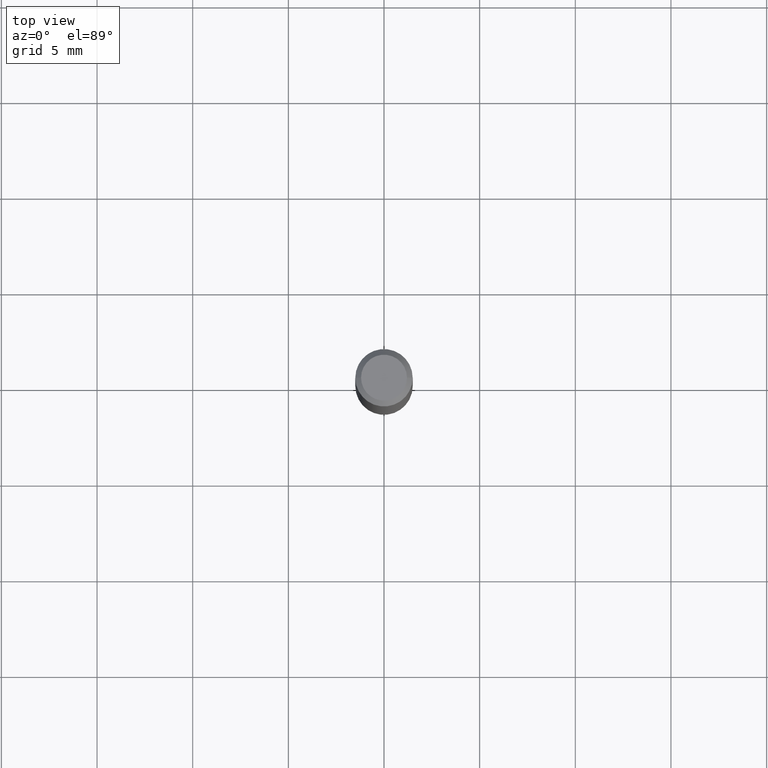
[diagram: clean part render]
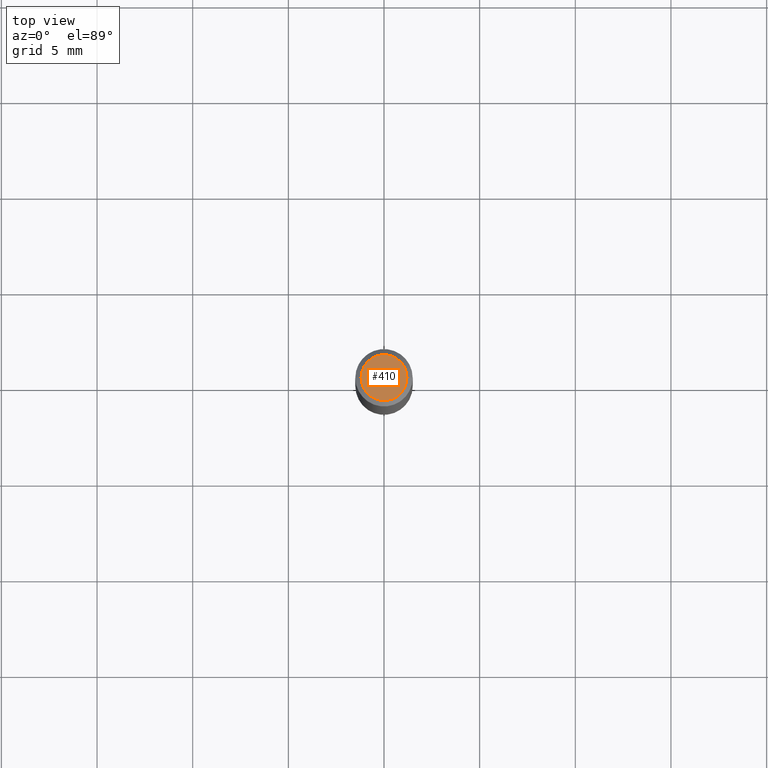
[diagram: same view with one face highlighted and labeled with its STEP entity id]
A machine part, top view. The second image highlights one B-rep face of the part: STEP entity #410.
In plain terms, the highlighted planar face has unit normal (0, -0, -1).
Its self-contained STEP definition (entity closure, byte-faithful):
#3 = DIRECTION ( 'NONE',  ( -2.445468806185136597E-29, 3.491481338843145583E-15, 1.000000000000000000 ) ) ;
#75 = DIRECTION ( 'NONE',  ( 2.438088387897960049E-29, -3.491481338843145188E-15, -1.000000000000000000 ) ) ;
#94 = CARTESIAN_POINT ( 'NONE',  ( 8.265746106709734507E-48, -1.180129479067563789E-33, -3.380025165646692144E-19 ) ) ;
#136 = EDGE_CURVE ( 'NONE', #258, #387, #357, .T. ) ;
#147 = ORIENTED_EDGE ( 'NONE', *, *, #136, .T. ) ;
#192 = AXIS2_PLACEMENT_3D ( 'NONE', #94, #3, #264 ) ;
#216 = CARTESIAN_POINT ( 'NONE',  ( 8.265746106709734507E-48, -1.180129479067563789E-33, -3.380025165646692144E-19 ) ) ;
#227 = DIRECTION ( 'NONE',  ( -1.000000000000000000, 6.982962677686265922E-15, -4.876176775795935793E-29 ) ) ;
#258 = VERTEX_POINT ( 'NONE', #273 ) ;
#264 = DIRECTION ( 'NONE',  ( 1.000000000000000000, -6.982962677686266711E-15, 4.876185090822587894E-29 ) ) ;
#273 = CARTESIAN_POINT ( 'NONE',  ( -0.04724000000000000421, 3.504923541997677355E-16, -3.380025165670481712E-19 ) ) ;
#294 = FACE_OUTER_BOUND ( 'NONE', #307, .T. ) ;
#307 = EDGE_LOOP ( 'NONE', ( #147, #421 ) ) ;
#321 = AXIS2_PLACEMENT_3D ( 'NONE', #216, #330, #452 ) ;
#327 = CARTESIAN_POINT ( 'NONE',  ( 0.04724000000000000421, -3.852183633974369345E-16, -3.380025165621689721E-19 ) ) ;
#330 = DIRECTION ( 'NONE',  ( -2.445468806185136597E-29, 3.491481338843145583E-15, 1.000000000000000000 ) ) ;
#357 = CIRCLE ( 'NONE', #321, 0.04724000000000000421 ) ;
#359 = CIRCLE ( 'NONE', #192, 0.04724000000000000421 ) ;
#375 = AXIS2_PLACEMENT_3D ( 'NONE', #413, #75, #227 ) ;
#387 = VERTEX_POINT ( 'NONE', #327 ) ;
#410 = ADVANCED_FACE ( 'NONE', ( #294 ), #449, .F. ) ;
#413 = CARTESIAN_POINT ( 'NONE',  ( 4.132873053354867254E-48, -5.900647395337818946E-34, -1.690012582823346072E-19 ) ) ;
#421 = ORIENTED_EDGE ( 'NONE', *, *, #444, .T. ) ;
#444 = EDGE_CURVE ( 'NONE', #387, #258, #359, .T. ) ;
#449 = PLANE ( 'NONE',  #375 ) ;
#452 = DIRECTION ( 'NONE',  ( 1.000000000000000000, -6.982962677686266711E-15, 4.876185090822587894E-29 ) ) ;